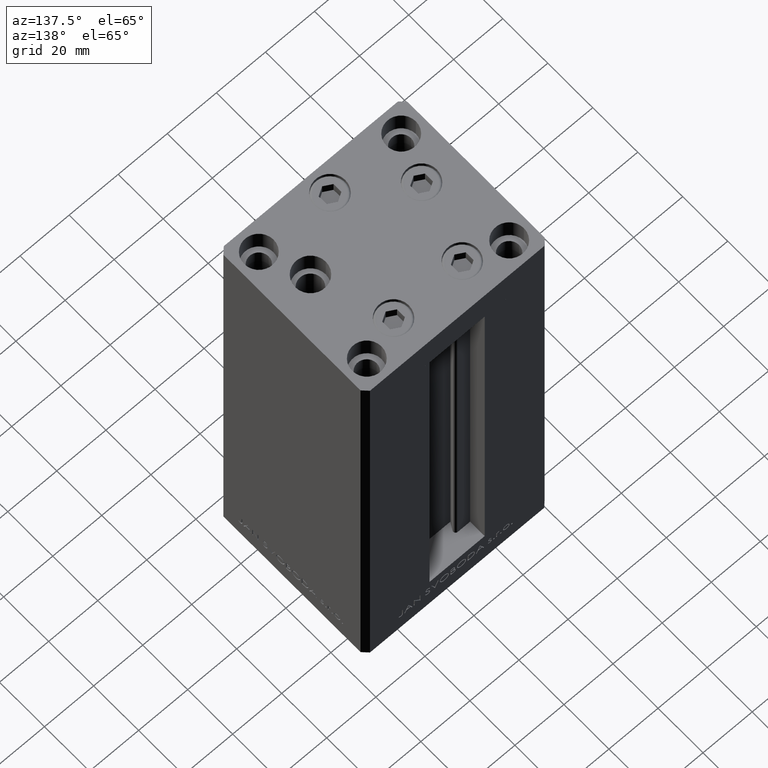
[diagram: clean part render]
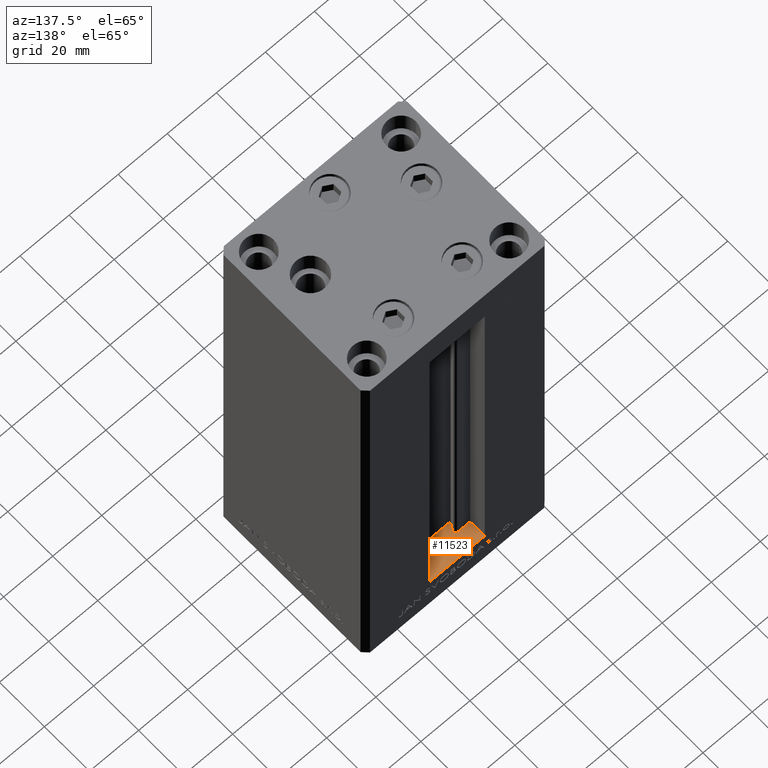
[diagram: same view with one face highlighted and labeled with its STEP entity id]
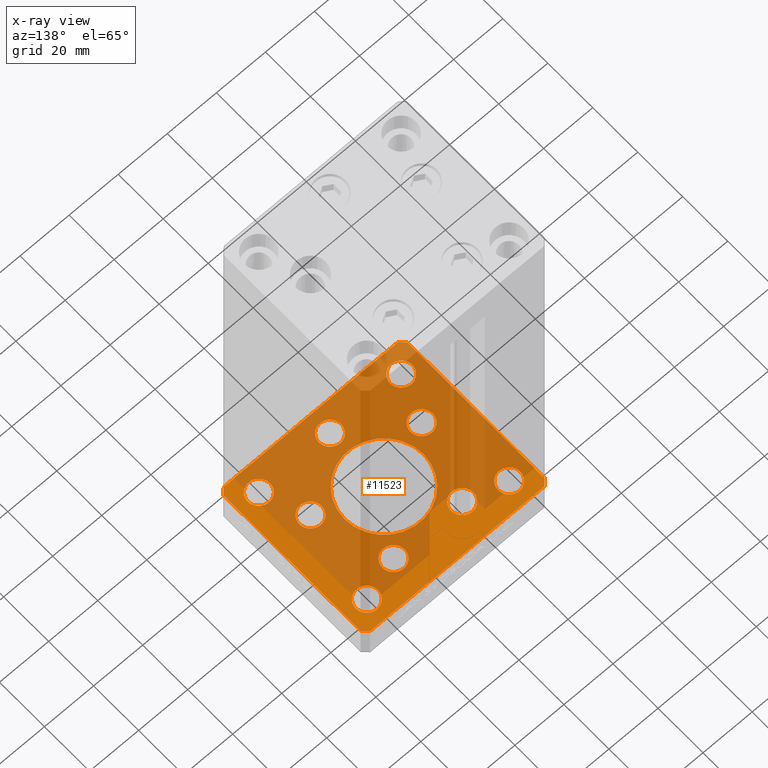
[diagram: x-ray of the same camera — body ghosted, the highlighted face saturated]
A machine part, auxiliary view. The second image highlights one B-rep face of the part: STEP entity #11523.
The next image is the same camera in x-ray: the body ghosted, the highlighted face saturated — about 74% of this face is hidden behind the body in this view.
In plain terms, the highlighted planar face has unit normal (0, 0, -1).
Its self-contained STEP definition (entity closure, byte-faithful):
#150 = DIRECTION ( 'NONE',  ( 0.7071067811865463515, 0.7071067811865487940, 0.000000000000000000 ) ) ;
#166 = ORIENTED_EDGE ( 'NONE', *, *, #8796, .F. ) ;
#214 = FACE_BOUND ( 'NONE', #1792, .T. ) ;
#1003 = DIRECTION ( 'NONE',  ( 1.000000000000000000, 0.000000000000000000, 0.000000000000000000 ) ) ;
#1160 = ORIENTED_EDGE ( 'NONE', *, *, #1424, .T. ) ;
#1424 = EDGE_CURVE ( 'NONE', #3129, #30845, #1944, .T. ) ;
#1792 = EDGE_LOOP ( 'NONE', ( #45435, #29051 ) ) ;
#1838 = CARTESIAN_POINT ( 'NONE',  ( 33.50000000000000000, -23.99999999999999645, -15.00000000000000000 ) ) ;
#1944 = CIRCLE ( 'NONE', #42879, 4.500000000000005329 ) ;
#3018 = CARTESIAN_POINT ( 'NONE',  ( 37.50000000000000711, 30.50000000000001421, -15.00000000000000000 ) ) ;
#3129 = VERTEX_POINT ( 'NONE', #9165 ) ;
#3519 = EDGE_LOOP ( 'NONE', ( #23874, #37007 ) ) ;
#3723 = LINE ( 'NONE', #7245, #8817 ) ;
#3972 = FACE_BOUND ( 'NONE', #3519, .T. ) ;
#4330 = LINE ( 'NONE', #31466, #35253 ) ;
#4644 = DIRECTION ( 'NONE',  ( 1.000000000000000000, 0.000000000000000000, 0.000000000000000000 ) ) ;
#4909 = ORIENTED_EDGE ( 'NONE', *, *, #7204, .T. ) ;
#5069 = CARTESIAN_POINT ( 'NONE',  ( -33.50000000000000000, 24.00000000000000711, -15.00000000000000000 ) ) ;
#5255 = VERTEX_POINT ( 'NONE', #45760 ) ;
#5339 = CARTESIAN_POINT ( 'NONE',  ( -9.491068579633243019, 19.50000000000000000, -15.00000000000000000 ) ) ;
#6158 = CARTESIAN_POINT ( 'NONE',  ( 0.000000000000000000, 0.000000000000000000, -15.00000000000000000 ) ) ;
#7107 = ORIENTED_EDGE ( 'NONE', *, *, #7991, .F. ) ;
#7204 = EDGE_CURVE ( 'NONE', #5255, #32895, #43851, .T. ) ;
#7245 = CARTESIAN_POINT ( 'NONE',  ( 37.50000000000000711, -30.49999999999992895, -15.00000000000000000 ) ) ;
#7484 = CARTESIAN_POINT ( 'NONE',  ( 0.000000000000000000, 0.000000000000000000, -15.00000000000000000 ) ) ;
#7790 = CARTESIAN_POINT ( 'NONE',  ( -29.00000000000000000, 24.00000000000000711, -15.00000000000000000 ) ) ;
#7937 = DIRECTION ( 'NONE',  ( 0.000000000000000000, -0.000000000000000000, -1.000000000000000000 ) ) ;
#7991 = EDGE_CURVE ( 'NONE', #28557, #38474, #46299, .T. ) ;
#8192 = DIRECTION ( 'NONE',  ( 1.000000000000000000, 0.000000000000000000, 0.000000000000000000 ) ) ;
#8235 = EDGE_CURVE ( 'NONE', #26815, #27791, #15793, .T. ) ;
#8274 = EDGE_CURVE ( 'NONE', #26054, #29673, #14971, .T. ) ;
#8450 = CARTESIAN_POINT ( 'NONE',  ( 22.62741699796953299, -8.000000000000000000, -15.00000000000000000 ) ) ;
#8566 = EDGE_CURVE ( 'NONE', #44261, #38525, #11806, .T. ) ;
#8633 = EDGE_CURVE ( 'NONE', #29398, #31166, #35066, .T. ) ;
#8796 = EDGE_CURVE ( 'NONE', #46847, #16764, #31028, .T. ) ;
#8817 = VECTOR ( 'NONE', #37656, 1000.000000000000000 ) ;
#9165 = CARTESIAN_POINT ( 'NONE',  ( 18.49106857963324657, 19.50000000000000000, -15.00000000000000000 ) ) ;
#9181 = LINE ( 'NONE', #44374, #43810 ) ;
#9304 = DIRECTION ( 'NONE',  ( 1.000000000000000000, 0.000000000000000000, 0.000000000000000000 ) ) ;
#9325 = VERTEX_POINT ( 'NONE', #38683 ) ;
#10169 = CARTESIAN_POINT ( 'NONE',  ( -13.99106857963324124, 19.50000000000000000, -15.00000000000000000 ) ) ;
#10250 = DIRECTION ( 'NONE',  ( 1.000000000000000000, 0.000000000000000000, 0.000000000000000000 ) ) ;
#10439 = CIRCLE ( 'NONE', #17684, 16.00000000000000000 ) ;
#10467 = ORIENTED_EDGE ( 'NONE', *, *, #8566, .F. ) ;
#11106 = CARTESIAN_POINT ( 'NONE',  ( -18.12741699796953654, -8.000000000000000000, -15.00000000000000000 ) ) ;
#11523 = ADVANCED_FACE ( 'NONE', ( #26814, #3972, #15023, #22553, #19291, #14526, #34636, #22301, #11752, #18549, #214 ), #45697, .F. ) ;
#11752 = FACE_OUTER_BOUND ( 'NONE', #39232, .T. ) ;
#11806 = LINE ( 'NONE', #41978, #24588 ) ;
#11940 = CARTESIAN_POINT ( 'NONE',  ( -22.62741699796953299, -8.000000000000000000, -15.00000000000000000 ) ) ;
#12191 = VERTEX_POINT ( 'NONE', #3018 ) ;
#12523 = EDGE_CURVE ( 'NONE', #39306, #36419, #48720, .T. ) ;
#12743 = EDGE_LOOP ( 'NONE', ( #19512, #38468 ) ) ;
#12777 = VERTEX_POINT ( 'NONE', #5069 ) ;
#12814 = DIRECTION ( 'NONE',  ( -0.000000000000000000, 0.000000000000000000, 1.000000000000000000 ) ) ;
#12964 = DIRECTION ( 'NONE',  ( -1.000000000000000000, -1.954618001100627573E-16, 0.000000000000000000 ) ) ;
#12971 = ORIENTED_EDGE ( 'NONE', *, *, #8274, .F. ) ;
#13283 = CARTESIAN_POINT ( 'NONE',  ( -4.500000000000001776, -24.00000000000001066, -15.00000000000000000 ) ) ;
#13298 = CARTESIAN_POINT ( 'NONE',  ( 13.99106857963324124, 19.50000000000000000, -15.00000000000000000 ) ) ;
#13458 = DIRECTION ( 'NONE',  ( 1.000000000000000000, 0.000000000000000000, 0.000000000000000000 ) ) ;
#13676 = EDGE_CURVE ( 'NONE', #38525, #46847, #21684, .T. ) ;
#13766 = AXIS2_PLACEMENT_3D ( 'NONE', #33377, #18541, #10250 ) ;
#13978 = ORIENTED_EDGE ( 'NONE', *, *, #26945, .T. ) ;
#14263 = DIRECTION ( 'NONE',  ( -0.000000000000000000, 0.000000000000000000, 1.000000000000000000 ) ) ;
#14526 = FACE_BOUND ( 'NONE', #15533, .T. ) ;
#14641 = EDGE_CURVE ( 'NONE', #37886, #30992, #45581, .T. ) ;
#14730 = ORIENTED_EDGE ( 'NONE', *, *, #26823, .F. ) ;
#14876 = CARTESIAN_POINT ( 'NONE',  ( 33.50000000000000000, 24.00000000000000355, -15.00000000000000000 ) ) ;
#14971 = CIRCLE ( 'NONE', #21377, 4.500000000000000888 ) ;
#14995 = CIRCLE ( 'NONE', #16609, 4.499999999999997335 ) ;
#15023 = FACE_BOUND ( 'NONE', #21566, .T. ) ;
#15201 = CARTESIAN_POINT ( 'NONE',  ( 35.50000000000000000, 32.49999999999999289, -15.00000000000000000 ) ) ;
#15533 = EDGE_LOOP ( 'NONE', ( #32771, #4909 ) ) ;
#15793 = CIRCLE ( 'NONE', #31831, 4.500000000000001776 ) ;
#15866 = VECTOR ( 'NONE', #17680, 1000.000000000000000 ) ;
#16051 = DIRECTION ( 'NONE',  ( -0.000000000000000000, 0.000000000000000000, 1.000000000000000000 ) ) ;
#16170 = DIRECTION ( 'NONE',  ( 1.000000000000000000, 0.000000000000000000, 0.000000000000000000 ) ) ;
#16609 = AXIS2_PLACEMENT_3D ( 'NONE', #24129, #28162, #9304 ) ;
#16708 = AXIS2_PLACEMENT_3D ( 'NONE', #42143, #18021, #37377 ) ;
#16710 = ORIENTED_EDGE ( 'NONE', *, *, #12523, .T. ) ;
#16764 = VERTEX_POINT ( 'NONE', #46165 ) ;
#17113 = ORIENTED_EDGE ( 'NONE', *, *, #17456, .F. ) ;
#17456 = EDGE_CURVE ( 'NONE', #34399, #44261, #4330, .T. ) ;
#17680 = DIRECTION ( 'NONE',  ( 1.000000000000000000, 1.172770800660376149E-15, 0.000000000000000000 ) ) ;
#17684 = AXIS2_PLACEMENT_3D ( 'NONE', #42369, #7937, #27269 ) ;
#18021 = DIRECTION ( 'NONE',  ( -0.000000000000000000, 0.000000000000000000, 1.000000000000000000 ) ) ;
#18359 = DIRECTION ( 'NONE',  ( -0.7071067811865524577, 0.7071067811865426878, 0.000000000000000000 ) ) ;
#18541 = DIRECTION ( 'NONE',  ( -0.000000000000000000, 0.000000000000000000, 1.000000000000000000 ) ) ;
#18549 = FACE_BOUND ( 'NONE', #12743, .T. ) ;
#18585 = CIRCLE ( 'NONE', #13766, 4.500000000000000888 ) ;
#18669 = DIRECTION ( 'NONE',  ( 0.000000000000000000, -0.000000000000000000, -1.000000000000000000 ) ) ;
#19291 = FACE_BOUND ( 'NONE', #19420, .T. ) ;
#19420 = EDGE_LOOP ( 'NONE', ( #1160, #20485 ) ) ;
#19512 = ORIENTED_EDGE ( 'NONE', *, *, #37163, .T. ) ;
#19927 = VECTOR ( 'NONE', #18359, 1000.000000000000000 ) ;
#20172 = DIRECTION ( 'NONE',  ( 0.000000000000000000, -0.000000000000000000, -1.000000000000000000 ) ) ;
#20180 = CIRCLE ( 'NONE', #41874, 4.500000000000000888 ) ;
#20316 = CARTESIAN_POINT ( 'NONE',  ( 29.00000000000000000, 24.00000000000000355, -15.00000000000000000 ) ) ;
#20485 = ORIENTED_EDGE ( 'NONE', *, *, #26950, .T. ) ;
#20627 = VECTOR ( 'NONE', #150, 1000.000000000000000 ) ;
#20737 = EDGE_CURVE ( 'NONE', #38474, #28557, #10439, .T. ) ;
#21087 = CARTESIAN_POINT ( 'NONE',  ( 0.000000000000000000, -24.00000000000001066, -15.00000000000000000 ) ) ;
#21108 = CIRCLE ( 'NONE', #43590, 4.500000000000000888 ) ;
#21254 = ORIENTED_EDGE ( 'NONE', *, *, #8235, .T. ) ;
#21333 = CARTESIAN_POINT ( 'NONE',  ( 24.50000000000000711, -23.99999999999999645, -15.00000000000000000 ) ) ;
#21377 = AXIS2_PLACEMENT_3D ( 'NONE', #21910, #18669, #48815 ) ;
#21470 = CARTESIAN_POINT ( 'NONE',  ( 9.491068579633235913, 19.50000000000000000, -15.00000000000000000 ) ) ;
#21566 = EDGE_LOOP ( 'NONE', ( #21254, #44252 ) ) ;
#21684 = LINE ( 'NONE', #44330, #15866 ) ;
#21685 = EDGE_LOOP ( 'NONE', ( #12971, #36361 ) ) ;
#21910 = CARTESIAN_POINT ( 'NONE',  ( -29.00000000000000000, -23.99999999999999645, -15.00000000000000000 ) ) ;
#22190 = AXIS2_PLACEMENT_3D ( 'NONE', #6158, #36579, #13458 ) ;
#22301 = FACE_BOUND ( 'NONE', #21685, .T. ) ;
#22469 = CARTESIAN_POINT ( 'NONE',  ( -27.12741699796953299, -8.000000000000000000, -15.00000000000000000 ) ) ;
#22553 = FACE_BOUND ( 'NONE', #25579, .T. ) ;
#22800 = DIRECTION ( 'NONE',  ( -0.000000000000000000, 0.000000000000000000, 1.000000000000000000 ) ) ;
#23874 = ORIENTED_EDGE ( 'NONE', *, *, #14641, .T. ) ;
#24129 = CARTESIAN_POINT ( 'NONE',  ( -22.62741699796953299, -8.000000000000000000, -15.00000000000000000 ) ) ;
#24581 = AXIS2_PLACEMENT_3D ( 'NONE', #38613, #42632, #8192 ) ;
#24588 = VECTOR ( 'NONE', #42469, 1000.000000000000000 ) ;
#25043 = CARTESIAN_POINT ( 'NONE',  ( -37.50000000000001421, 30.50000000000000000, -15.00000000000000000 ) ) ;
#25422 = CARTESIAN_POINT ( 'NONE',  ( -35.50000000000001421, -32.50000000000000711, -15.00000000000000000 ) ) ;
#25486 = AXIS2_PLACEMENT_3D ( 'NONE', #11940, #27254, #38821 ) ;
#25579 = EDGE_LOOP ( 'NONE', ( #16710, #13978 ) ) ;
#25735 = DIRECTION ( 'NONE',  ( -0.000000000000000000, 0.000000000000000000, 1.000000000000000000 ) ) ;
#25864 = LINE ( 'NONE', #26113, #43195 ) ;
#26054 = VERTEX_POINT ( 'NONE', #44614 ) ;
#26113 = CARTESIAN_POINT ( 'NONE',  ( -35.50000000000000711, 32.49999999999997868, -15.00000000000000000 ) ) ;
#26317 = CARTESIAN_POINT ( 'NONE',  ( 13.99106857963324124, 19.50000000000000000, -15.00000000000000000 ) ) ;
#26814 = FACE_BOUND ( 'NONE', #37520, .T. ) ;
#26815 = VERTEX_POINT ( 'NONE', #28354 ) ;
#26823 = EDGE_CURVE ( 'NONE', #44644, #9325, #20180, .T. ) ;
#26945 = EDGE_CURVE ( 'NONE', #36419, #39306, #18585, .T. ) ;
#26950 = EDGE_CURVE ( 'NONE', #30845, #3129, #33838, .T. ) ;
#27254 = DIRECTION ( 'NONE',  ( -0.000000000000000000, 0.000000000000000000, 1.000000000000000000 ) ) ;
#27269 = DIRECTION ( 'NONE',  ( 1.000000000000000000, 0.000000000000000000, 0.000000000000000000 ) ) ;
#27791 = VERTEX_POINT ( 'NONE', #13283 ) ;
#28162 = DIRECTION ( 'NONE',  ( -0.000000000000000000, 0.000000000000000000, 1.000000000000000000 ) ) ;
#28354 = CARTESIAN_POINT ( 'NONE',  ( 4.500000000000001776, -24.00000000000001066, -15.00000000000000000 ) ) ;
#28557 = VERTEX_POINT ( 'NONE', #34152 ) ;
#28726 = CIRCLE ( 'NONE', #16708, 4.499999999999999112 ) ;
#28757 = AXIS2_PLACEMENT_3D ( 'NONE', #46219, #16051, #39413 ) ;
#28856 = ORIENTED_EDGE ( 'NONE', *, *, #49026, .F. ) ;
#29051 = ORIENTED_EDGE ( 'NONE', *, *, #8633, .T. ) ;
#29398 = VERTEX_POINT ( 'NONE', #21333 ) ;
#29414 = AXIS2_PLACEMENT_3D ( 'NONE', #7484, #22800, #38146 ) ;
#29500 = EDGE_CURVE ( 'NONE', #27791, #26815, #49142, .T. ) ;
#29673 = VERTEX_POINT ( 'NONE', #36871 ) ;
#29959 = EDGE_LOOP ( 'NONE', ( #14730, #39198 ) ) ;
#30105 = ORIENTED_EDGE ( 'NONE', *, *, #46312, .F. ) ;
#30169 = CARTESIAN_POINT ( 'NONE',  ( 37.50000000000000711, 30.50000000000001421, -15.00000000000000000 ) ) ;
#30252 = AXIS2_PLACEMENT_3D ( 'NONE', #8450, #31583, #39115 ) ;
#30401 = DIRECTION ( 'NONE',  ( -0.7071067811865524577, -0.7071067811865426878, 0.000000000000000000 ) ) ;
#30419 = DIRECTION ( 'NONE',  ( 1.000000000000000000, 0.000000000000000000, 0.000000000000000000 ) ) ;
#30845 = VERTEX_POINT ( 'NONE', #21470 ) ;
#30910 = LINE ( 'NONE', #30169, #19927 ) ;
#30992 = VERTEX_POINT ( 'NONE', #22469 ) ;
#31028 = LINE ( 'NONE', #34809, #20627 ) ;
#31166 = VERTEX_POINT ( 'NONE', #1838 ) ;
#31421 = EDGE_CURVE ( 'NONE', #9325, #44644, #21108, .T. ) ;
#31466 = CARTESIAN_POINT ( 'NONE',  ( -37.50000000000001421, 30.50000000000000000, -15.00000000000000000 ) ) ;
#31583 = DIRECTION ( 'NONE',  ( -0.000000000000000000, 0.000000000000000000, 1.000000000000000000 ) ) ;
#31793 = AXIS2_PLACEMENT_3D ( 'NONE', #10169, #25735, #40836 ) ;
#31831 = AXIS2_PLACEMENT_3D ( 'NONE', #39549, #36277, #40291 ) ;
#31892 = DIRECTION ( 'NONE',  ( 1.000000000000000000, 0.000000000000000000, 0.000000000000000000 ) ) ;
#32771 = ORIENTED_EDGE ( 'NONE', *, *, #41483, .T. ) ;
#32895 = VERTEX_POINT ( 'NONE', #5339 ) ;
#33377 = CARTESIAN_POINT ( 'NONE',  ( 22.62741699796953299, -8.000000000000000000, -15.00000000000000000 ) ) ;
#33446 = CIRCLE ( 'NONE', #24581, 4.500000000000000888 ) ;
#33694 = CIRCLE ( 'NONE', #45713, 4.500000000000000888 ) ;
#33838 = CIRCLE ( 'NONE', #39421, 4.500000000000005329 ) ;
#34016 = CARTESIAN_POINT ( 'NONE',  ( -24.50000000000000000, 24.00000000000000711, -15.00000000000000000 ) ) ;
#34152 = CARTESIAN_POINT ( 'NONE',  ( -16.00000000000000000, 1.959434878635765131E-15, -15.00000000000000000 ) ) ;
#34399 = VERTEX_POINT ( 'NONE', #25043 ) ;
#34636 = FACE_BOUND ( 'NONE', #29959, .T. ) ;
#34809 = CARTESIAN_POINT ( 'NONE',  ( 35.50000000000001421, -32.49999999999992184, -15.00000000000000000 ) ) ;
#34819 = CARTESIAN_POINT ( 'NONE',  ( 29.00000000000000000, 24.00000000000000355, -15.00000000000000000 ) ) ;
#35066 = CIRCLE ( 'NONE', #36669, 4.499999999999997335 ) ;
#35234 = EDGE_CURVE ( 'NONE', #35358, #36656, #9181, .T. ) ;
#35253 = VECTOR ( 'NONE', #43021, 1000.000000000000000 ) ;
#35358 = VERTEX_POINT ( 'NONE', #15201 ) ;
#35525 = CARTESIAN_POINT ( 'NONE',  ( -29.00000000000000000, -23.99999999999999645, -15.00000000000000000 ) ) ;
#35553 = CARTESIAN_POINT ( 'NONE',  ( 35.50000000000001421, -32.49999999999992184, -15.00000000000000000 ) ) ;
#35915 = DIRECTION ( 'NONE',  ( -0.000000000000000000, 0.000000000000000000, 1.000000000000000000 ) ) ;
#36277 = DIRECTION ( 'NONE',  ( -0.000000000000000000, 0.000000000000000000, 1.000000000000000000 ) ) ;
#36301 = AXIS2_PLACEMENT_3D ( 'NONE', #21087, #37185, #40952 ) ;
#36361 = ORIENTED_EDGE ( 'NONE', *, *, #44367, .F. ) ;
#36419 = VERTEX_POINT ( 'NONE', #44567 ) ;
#36579 = DIRECTION ( 'NONE',  ( 0.000000000000000000, -0.000000000000000000, -1.000000000000000000 ) ) ;
#36656 = VERTEX_POINT ( 'NONE', #38784 ) ;
#36669 = AXIS2_PLACEMENT_3D ( 'NONE', #47714, #35915, #1003 ) ;
#36871 = CARTESIAN_POINT ( 'NONE',  ( -33.50000000000000000, -23.99999999999999645, -15.00000000000000000 ) ) ;
#37007 = ORIENTED_EDGE ( 'NONE', *, *, #37963, .T. ) ;
#37163 = EDGE_CURVE ( 'NONE', #46979, #12777, #33446, .T. ) ;
#37185 = DIRECTION ( 'NONE',  ( -0.000000000000000000, 0.000000000000000000, 1.000000000000000000 ) ) ;
#37377 = DIRECTION ( 'NONE',  ( 1.000000000000000000, 0.000000000000000000, 0.000000000000000000 ) ) ;
#37460 = DIRECTION ( 'NONE',  ( -0.000000000000000000, 0.000000000000000000, 1.000000000000000000 ) ) ;
#37520 = EDGE_LOOP ( 'NONE', ( #44045, #7107 ) ) ;
#37656 = DIRECTION ( 'NONE',  ( 0.000000000000000000, 1.000000000000000000, 0.000000000000000000 ) ) ;
#37886 = VERTEX_POINT ( 'NONE', #11106 ) ;
#37963 = EDGE_CURVE ( 'NONE', #30992, #37886, #14995, .T. ) ;
#38146 = DIRECTION ( 'NONE',  ( 1.000000000000000000, 0.000000000000000000, 0.000000000000000000 ) ) ;
#38468 = ORIENTED_EDGE ( 'NONE', *, *, #47959, .T. ) ;
#38474 = VERTEX_POINT ( 'NONE', #45052 ) ;
#38525 = VERTEX_POINT ( 'NONE', #25422 ) ;
#38613 = CARTESIAN_POINT ( 'NONE',  ( -29.00000000000000000, 24.00000000000000711, -15.00000000000000000 ) ) ;
#38683 = CARTESIAN_POINT ( 'NONE',  ( 24.50000000000000000, 24.00000000000000355, -15.00000000000000000 ) ) ;
#38784 = CARTESIAN_POINT ( 'NONE',  ( -35.50000000000000711, 32.49999999999997868, -15.00000000000000000 ) ) ;
#38821 = DIRECTION ( 'NONE',  ( 1.000000000000000000, 0.000000000000000000, 0.000000000000000000 ) ) ;
#38824 = DIRECTION ( 'NONE',  ( 0.000000000000000000, -0.000000000000000000, -1.000000000000000000 ) ) ;
#39115 = DIRECTION ( 'NONE',  ( 1.000000000000000000, 0.000000000000000000, 0.000000000000000000 ) ) ;
#39198 = ORIENTED_EDGE ( 'NONE', *, *, #31421, .F. ) ;
#39232 = EDGE_LOOP ( 'NONE', ( #10467, #17113, #47647, #49342, #30105, #28856, #166, #42425 ) ) ;
#39306 = VERTEX_POINT ( 'NONE', #43976 ) ;
#39413 = DIRECTION ( 'NONE',  ( 1.000000000000000000, 0.000000000000000000, 0.000000000000000000 ) ) ;
#39421 = AXIS2_PLACEMENT_3D ( 'NONE', #26317, #14263, #41416 ) ;
#39549 = CARTESIAN_POINT ( 'NONE',  ( 0.000000000000000000, -24.00000000000001066, -15.00000000000000000 ) ) ;
#40002 = CIRCLE ( 'NONE', #28757, 4.499999999999997335 ) ;
#40025 = CARTESIAN_POINT ( 'NONE',  ( -37.50000000000000000, -30.50000000000004263, -15.00000000000000000 ) ) ;
#40291 = DIRECTION ( 'NONE',  ( 1.000000000000000000, 0.000000000000000000, 0.000000000000000000 ) ) ;
#40785 = AXIS2_PLACEMENT_3D ( 'NONE', #35525, #20172, #16170 ) ;
#40836 = DIRECTION ( 'NONE',  ( 1.000000000000000000, 0.000000000000000000, 0.000000000000000000 ) ) ;
#40952 = DIRECTION ( 'NONE',  ( 1.000000000000000000, 0.000000000000000000, 0.000000000000000000 ) ) ;
#41144 = EDGE_CURVE ( 'NONE', #36656, #34399, #25864, .T. ) ;
#41303 = EDGE_CURVE ( 'NONE', #31166, #29398, #40002, .T. ) ;
#41416 = DIRECTION ( 'NONE',  ( 1.000000000000000000, 0.000000000000000000, 0.000000000000000000 ) ) ;
#41483 = EDGE_CURVE ( 'NONE', #32895, #5255, #28726, .T. ) ;
#41874 = AXIS2_PLACEMENT_3D ( 'NONE', #20316, #43460, #31892 ) ;
#41978 = CARTESIAN_POINT ( 'NONE',  ( -37.50000000000000000, -30.50000000000004263, -15.00000000000000000 ) ) ;
#42143 = CARTESIAN_POINT ( 'NONE',  ( -13.99106857963324124, 19.50000000000000000, -15.00000000000000000 ) ) ;
#42369 = CARTESIAN_POINT ( 'NONE',  ( 0.000000000000000000, 0.000000000000000000, -15.00000000000000000 ) ) ;
#42425 = ORIENTED_EDGE ( 'NONE', *, *, #13676, .F. ) ;
#42469 = DIRECTION ( 'NONE',  ( 0.7071067811865512365, -0.7071067811865439090, 0.000000000000000000 ) ) ;
#42632 = DIRECTION ( 'NONE',  ( -0.000000000000000000, 0.000000000000000000, 1.000000000000000000 ) ) ;
#42879 = AXIS2_PLACEMENT_3D ( 'NONE', #13298, #12814, #43231 ) ;
#43021 = DIRECTION ( 'NONE',  ( 2.275047181608926165E-16, -1.000000000000000000, 0.000000000000000000 ) ) ;
#43195 = VECTOR ( 'NONE', #30401, 1000.000000000000000 ) ;
#43231 = DIRECTION ( 'NONE',  ( 1.000000000000000000, 0.000000000000000000, 0.000000000000000000 ) ) ;
#43460 = DIRECTION ( 'NONE',  ( 0.000000000000000000, -0.000000000000000000, -1.000000000000000000 ) ) ;
#43590 = AXIS2_PLACEMENT_3D ( 'NONE', #34819, #38824, #4644 ) ;
#43810 = VECTOR ( 'NONE', #12964, 1000.000000000000000 ) ;
#43851 = CIRCLE ( 'NONE', #31793, 4.499999999999999112 ) ;
#43976 = CARTESIAN_POINT ( 'NONE',  ( 27.12741699796953654, -8.000000000000000000, -15.00000000000000000 ) ) ;
#44045 = ORIENTED_EDGE ( 'NONE', *, *, #20737, .F. ) ;
#44252 = ORIENTED_EDGE ( 'NONE', *, *, #29500, .T. ) ;
#44261 = VERTEX_POINT ( 'NONE', #40025 ) ;
#44330 = CARTESIAN_POINT ( 'NONE',  ( -35.50000000000001421, -32.50000000000000711, -15.00000000000000000 ) ) ;
#44367 = EDGE_CURVE ( 'NONE', #29673, #26054, #47209, .T. ) ;
#44374 = CARTESIAN_POINT ( 'NONE',  ( 35.50000000000000000, 32.49999999999999289, -15.00000000000000000 ) ) ;
#44567 = CARTESIAN_POINT ( 'NONE',  ( 18.12741699796953299, -8.000000000000000000, -15.00000000000000000 ) ) ;
#44614 = CARTESIAN_POINT ( 'NONE',  ( -24.50000000000000000, -23.99999999999999645, -15.00000000000000000 ) ) ;
#44644 = VERTEX_POINT ( 'NONE', #14876 ) ;
#45052 = CARTESIAN_POINT ( 'NONE',  ( 16.00000000000000000, 0.000000000000000000, -15.00000000000000000 ) ) ;
#45435 = ORIENTED_EDGE ( 'NONE', *, *, #41303, .T. ) ;
#45581 = CIRCLE ( 'NONE', #25486, 4.499999999999997335 ) ;
#45697 = PLANE ( 'NONE',  #29414 ) ;
#45713 = AXIS2_PLACEMENT_3D ( 'NONE', #7790, #37460, #30419 ) ;
#45760 = CARTESIAN_POINT ( 'NONE',  ( -18.49106857963323947, 19.50000000000000000, -15.00000000000000000 ) ) ;
#46165 = CARTESIAN_POINT ( 'NONE',  ( 37.50000000000000711, -30.49999999999992895, -15.00000000000000000 ) ) ;
#46219 = CARTESIAN_POINT ( 'NONE',  ( 29.00000000000000355, -23.99999999999999645, -15.00000000000000000 ) ) ;
#46299 = CIRCLE ( 'NONE', #22190, 16.00000000000000000 ) ;
#46312 = EDGE_CURVE ( 'NONE', #12191, #35358, #30910, .T. ) ;
#46847 = VERTEX_POINT ( 'NONE', #35553 ) ;
#46979 = VERTEX_POINT ( 'NONE', #34016 ) ;
#47209 = CIRCLE ( 'NONE', #40785, 4.500000000000000888 ) ;
#47647 = ORIENTED_EDGE ( 'NONE', *, *, #41144, .F. ) ;
#47714 = CARTESIAN_POINT ( 'NONE',  ( 29.00000000000000355, -23.99999999999999645, -15.00000000000000000 ) ) ;
#47959 = EDGE_CURVE ( 'NONE', #12777, #46979, #33694, .T. ) ;
#48720 = CIRCLE ( 'NONE', #30252, 4.500000000000000888 ) ;
#48815 = DIRECTION ( 'NONE',  ( 1.000000000000000000, 0.000000000000000000, 0.000000000000000000 ) ) ;
#49026 = EDGE_CURVE ( 'NONE', #16764, #12191, #3723, .T. ) ;
#49142 = CIRCLE ( 'NONE', #36301, 4.500000000000001776 ) ;
#49342 = ORIENTED_EDGE ( 'NONE', *, *, #35234, .F. ) ;